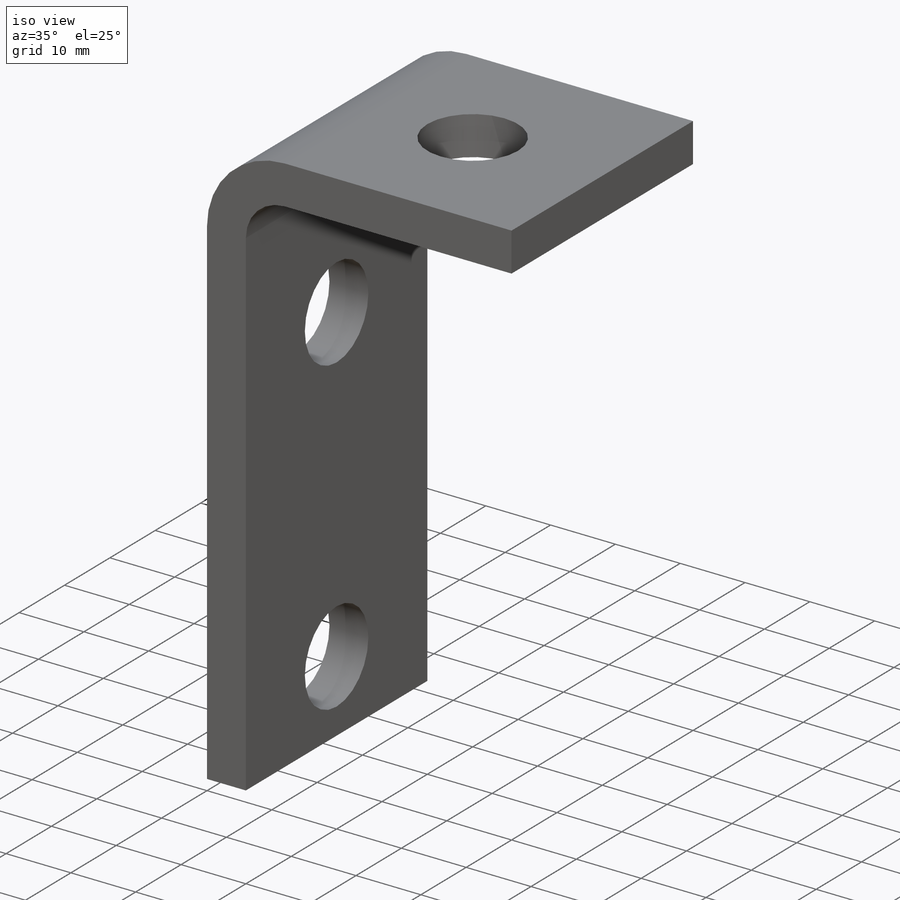
[diagram: iso view]
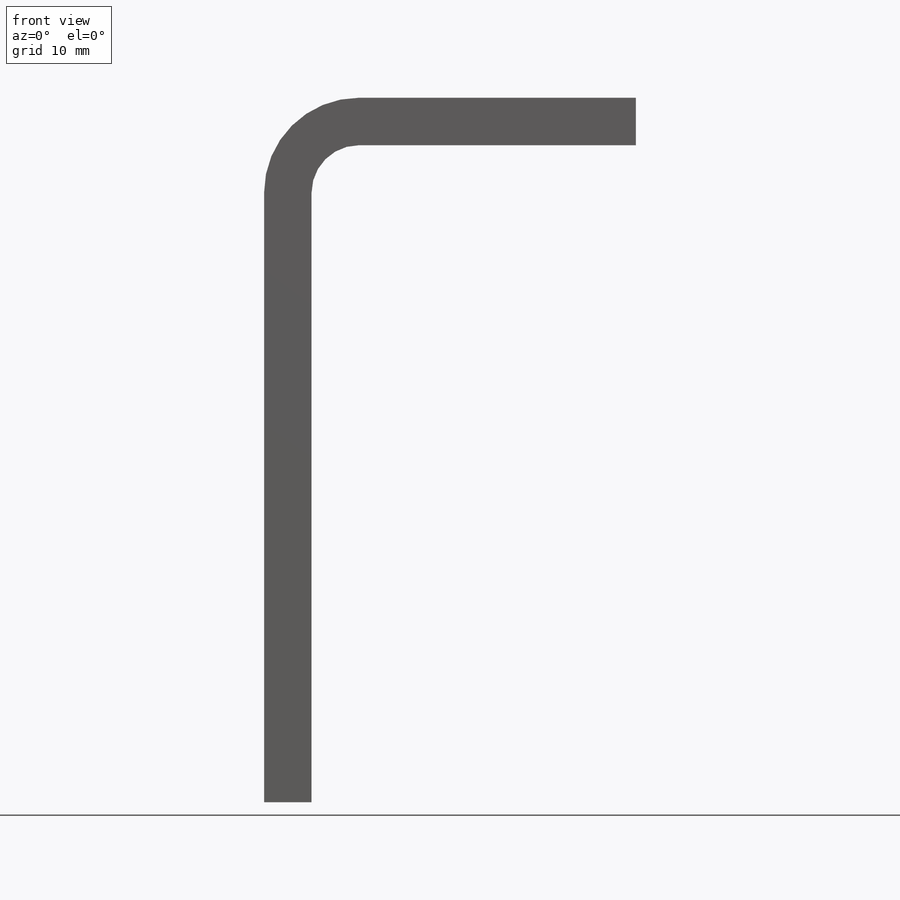
[diagram: front view]
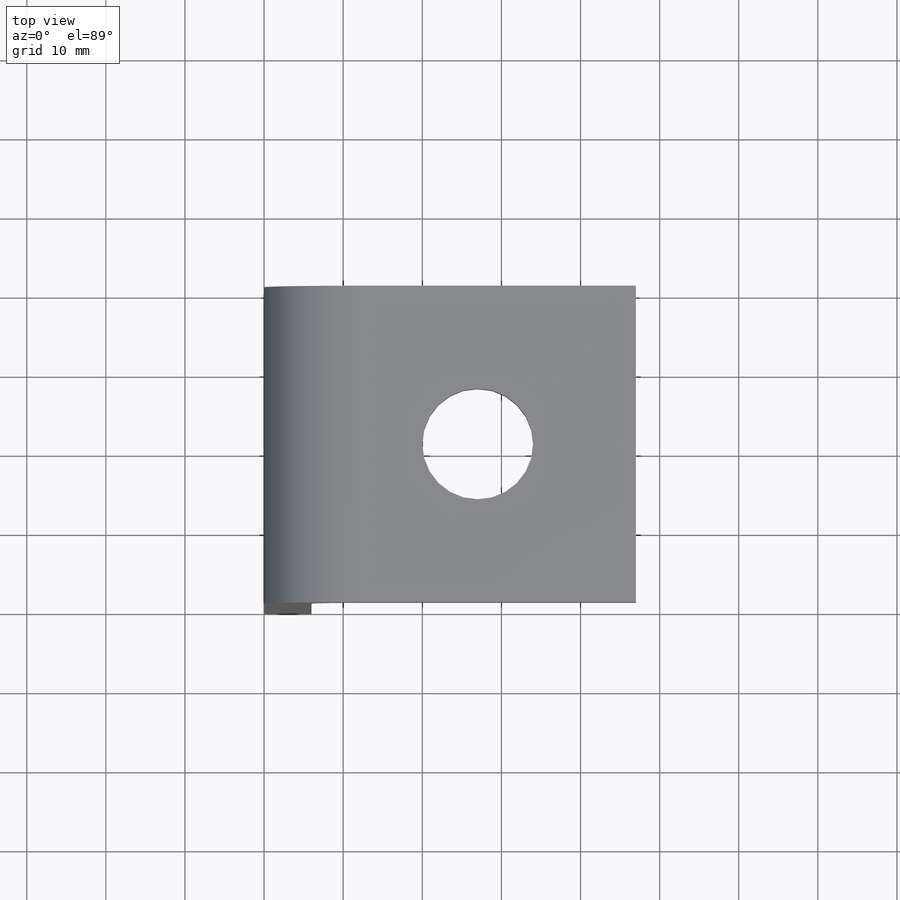
[diagram: top view]
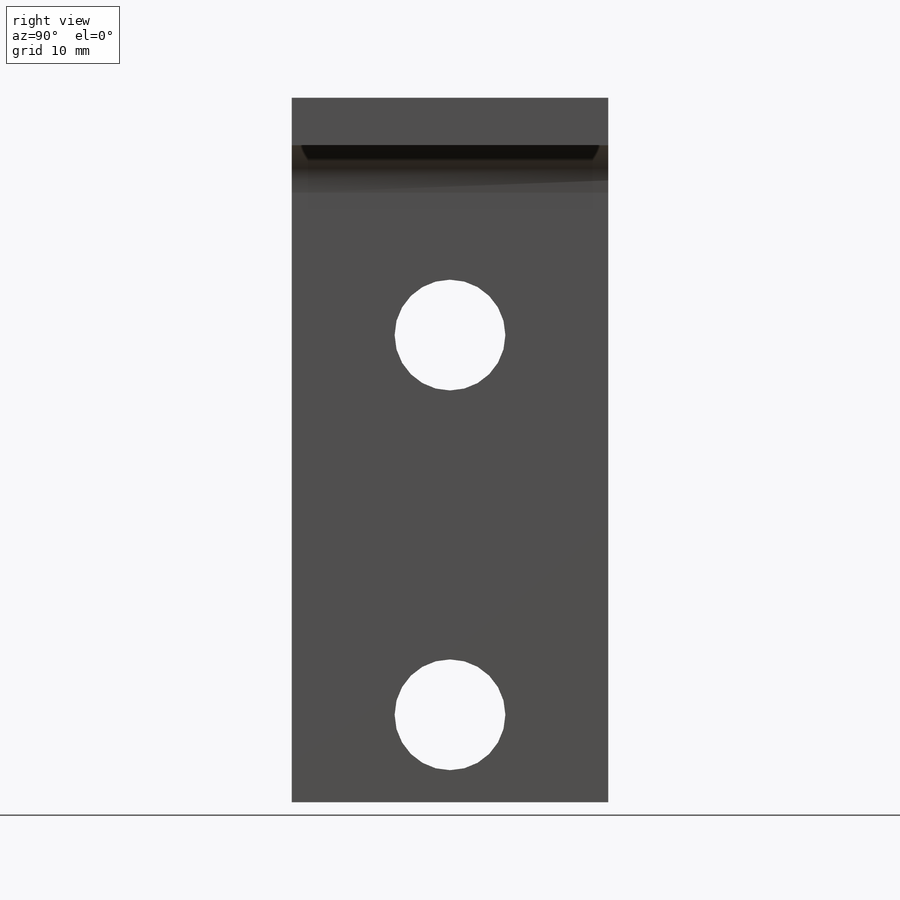
[diagram: right view]
SOLIDWORKS PART (.sldprt)
format: sldprt  version: not decoded by parser v0  size: 501,248 bytes
history: native  units: mm
features: sketch x16, sheet_metal_op x5, hole x2, material x1, cut_extrude x1 + 4 further entries (+13 scaffold rows collapsed; 4 parser-record rows omitted)
feature tree (46):
  scaffold x13  (default folders/planes/origin — collapsed)
  material  "Material <not specified>"
  sketch  "Sketch7"  dims[D1=12.0mm D2=47.0mm D3=98.0mm]
  sheet_metal_op  "Base-Flange1"
  sketch  "Sketch10"  dims[c1.D1=6.0mm c1.D2=92.0mm c1.D3=41.0mm c2.D2=6.0mm c2.D3=6.0mm]
  cut_extrude  "Cut-Extrude1"  [1 undecoded]
  hole  "Ø14.0 (14) Diameter Hole1"  Diameter=14mm Depth=47mm
  sketch  "Sketch12"  dims[D1=48.0mm D2=18.0mm]
  sketch  "Sketch11"  dims[hole-wizard template sketch: 60 standard entries collapsed; hole parameters kept: c18.Thru Hole Depth=47.0mm]
  hole  "Ø14.0 (14) Diameter Hole2"  Diameter=14mm Depth=6mm
  sketch  "Sketch14"  dims[D1=15.0mm]
  sketch  "Sketch13"  dims[hole-wizard template sketch: 60 standard entries collapsed; hole parameters kept: c18.Thru Hole Depth=6.0mm]
  sketch  "Bend-Lines1"
  sketch  "Bounding-Box1"
  sheet_metal_op  "Sheet-Metal4"
  "Flat-Pattern4"
  sketch  "Bend-Lines3"
  sketch  "Bounding-Box3"
  parser-record x4  (decoder bookkeeping rows leaked as tree rows — omitted from the tree; the rows remain in map.json)
  sheet_metal_op  "Sheet-Metal5"
  "Flat-Pattern4"
  sketch  "Bend-Lines3"
  sketch  "Bounding-Box3"
  sheet_metal_op  "Sheet-Metal6"
  "Flat-Pattern4"
  sketch  "Bend-Lines3"
  sketch  "Bounding-Box3"
  sheet_metal_op  "Sheet-Metal7"
  "Flat-Pattern4"
  sketch  "Bend-Lines3"
  sketch  "Bounding-Box3"
decode coverage: 8 of 24 modeling features carry decoded parameters; 4 rows unclassified (native names shown)
note: ~ marks probable driven/reference dimensions
note: 1 parameter value undecoded
note: suppression state not decoded; provenance and decode notes live in map.json
